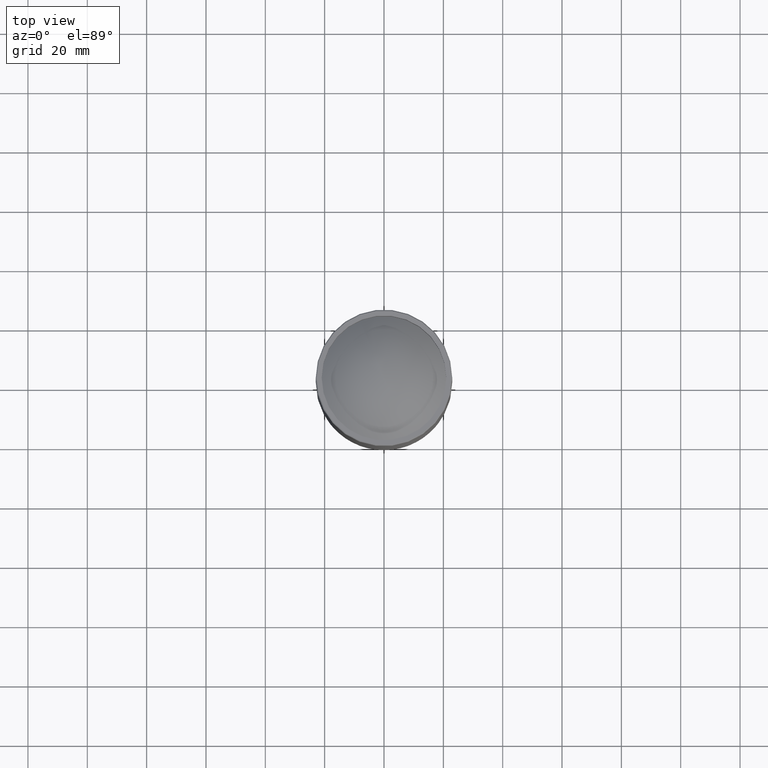
[diagram: clean part render]
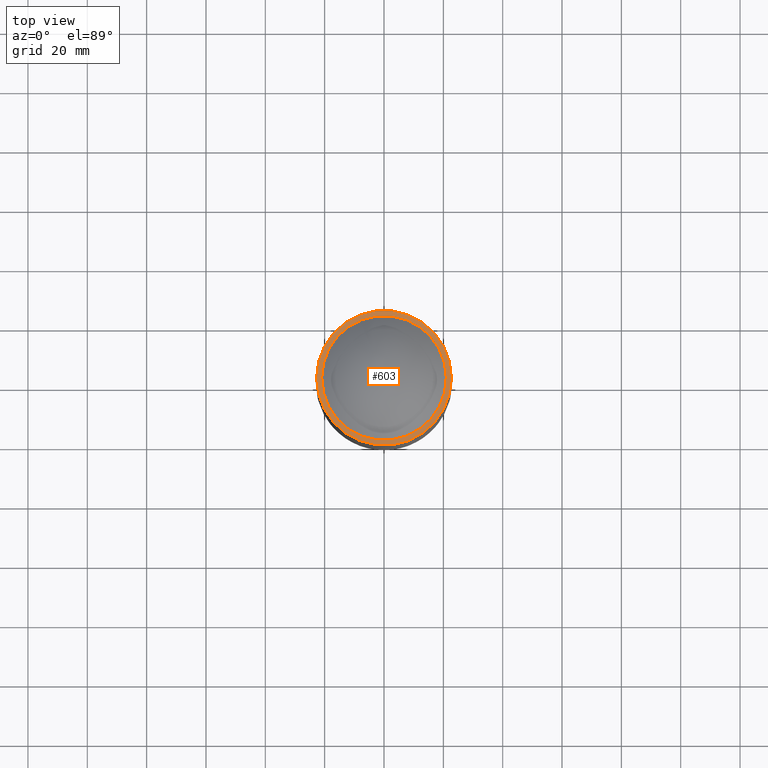
[diagram: same view with one face highlighted and labeled with its STEP entity id]
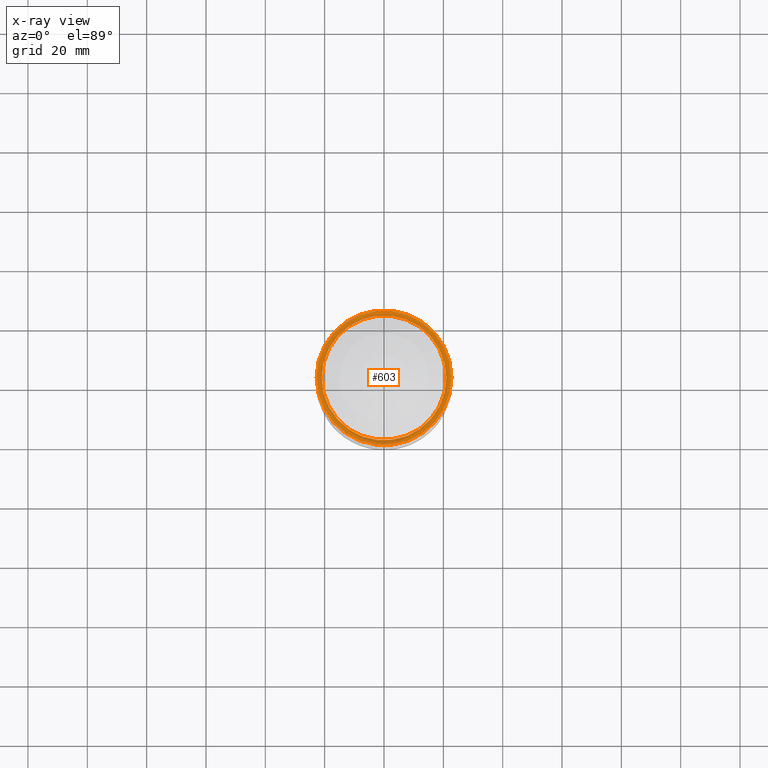
[diagram: x-ray of the same camera — body ghosted, the highlighted face saturated]
A machine part, top view. The second image highlights one B-rep face of the part: STEP entity #603.
The next image is the same camera in x-ray: the body ghosted, the highlighted face saturated — about 0% of this face is hidden behind the body in this view.
In plain terms, the highlighted planar face has unit normal (0, 0, -1).
Its self-contained STEP definition (entity closure, byte-faithful):
#18 = DIRECTION ( 'NONE',  ( 0.000000000000000000, 0.000000000000000000, 1.000000000000000000 ) ) ;
#26 = DIRECTION ( 'NONE',  ( 0.000000000000000000, 0.000000000000000000, -1.000000000000000000 ) ) ;
#33 = PLANE ( 'NONE',  #404 ) ;
#51 = AXIS2_PLACEMENT_3D ( 'NONE', #426, #26, #105 ) ;
#105 = DIRECTION ( 'NONE',  ( -1.000000000000000000, 0.000000000000000000, 0.000000000000000000 ) ) ;
#127 = EDGE_LOOP ( 'NONE', ( #200 ) ) ;
#135 = VERTEX_POINT ( 'NONE', #192 ) ;
#146 = CIRCLE ( 'NONE', #550, 21.00000000000000000 ) ;
#176 = FACE_OUTER_BOUND ( 'NONE', #127, .T. ) ;
#192 = CARTESIAN_POINT ( 'NONE',  ( -22.70000000000001350, -4.008608459946269651E-15, -438.0000000000000000 ) ) ;
#196 = VERTEX_POINT ( 'NONE', #510 ) ;
#200 = ORIENTED_EDGE ( 'NONE', *, *, #843, .F. ) ;
#211 = CIRCLE ( 'NONE', #51, 22.70000000000001350 ) ;
#277 = ORIENTED_EDGE ( 'NONE', *, *, #733, .F. ) ;
#288 = CARTESIAN_POINT ( 'NONE',  ( 2.126977070614405733E-15, 21.75000000000001066, -438.0000000000000000 ) ) ;
#315 = DIRECTION ( 'NONE',  ( -1.000000000000000000, 0.000000000000000000, -0.000000000000000000 ) ) ;
#393 = DIRECTION ( 'NONE',  ( 1.000000000000000000, 0.000000000000000000, 0.000000000000000000 ) ) ;
#404 = AXIS2_PLACEMENT_3D ( 'NONE', #288, #418, #315 ) ;
#405 = CARTESIAN_POINT ( 'NONE',  ( 0.000000000000000000, 0.000000000000000000, -438.0000000000000000 ) ) ;
#418 = DIRECTION ( 'NONE',  ( 0.000000000000000000, 0.000000000000000000, -1.000000000000000000 ) ) ;
#426 = CARTESIAN_POINT ( 'NONE',  ( 1.734723475976807094E-15, -4.008608459946269651E-15, -438.0000000000000000 ) ) ;
#510 = CARTESIAN_POINT ( 'NONE',  ( 21.00000000000000000, 0.000000000000000000, -438.0000000000000000 ) ) ;
#550 = AXIS2_PLACEMENT_3D ( 'NONE', #405, #18, #393 ) ;
#603 = ADVANCED_FACE ( 'NONE', ( #764, #176 ), #33, .F. ) ;
#681 = EDGE_LOOP ( 'NONE', ( #277 ) ) ;
#733 = EDGE_CURVE ( 'NONE', #196, #196, #146, .T. ) ;
#764 = FACE_BOUND ( 'NONE', #681, .T. ) ;
#843 = EDGE_CURVE ( 'NONE', #135, #135, #211, .T. ) ;